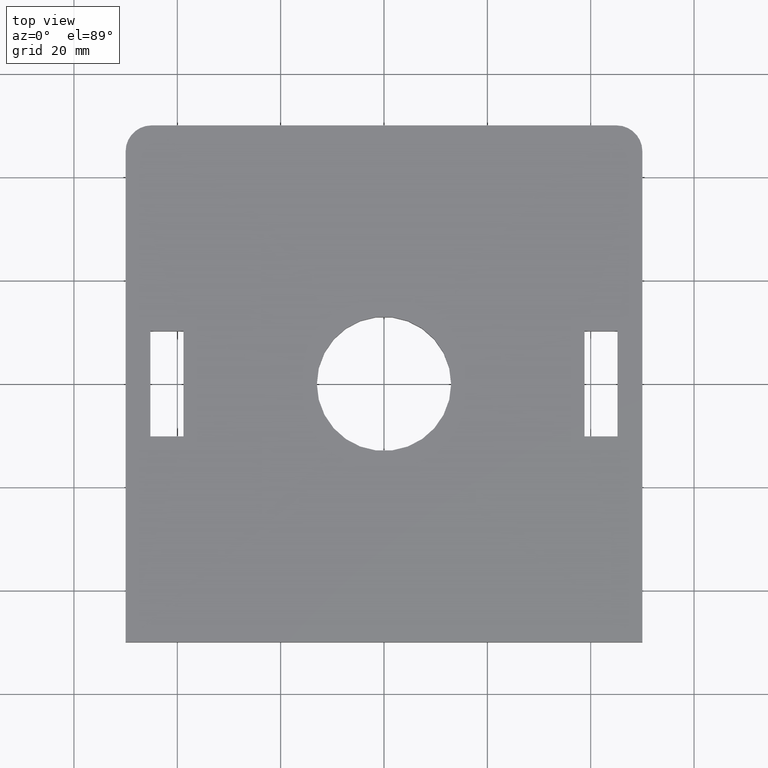
[diagram: clean part render]
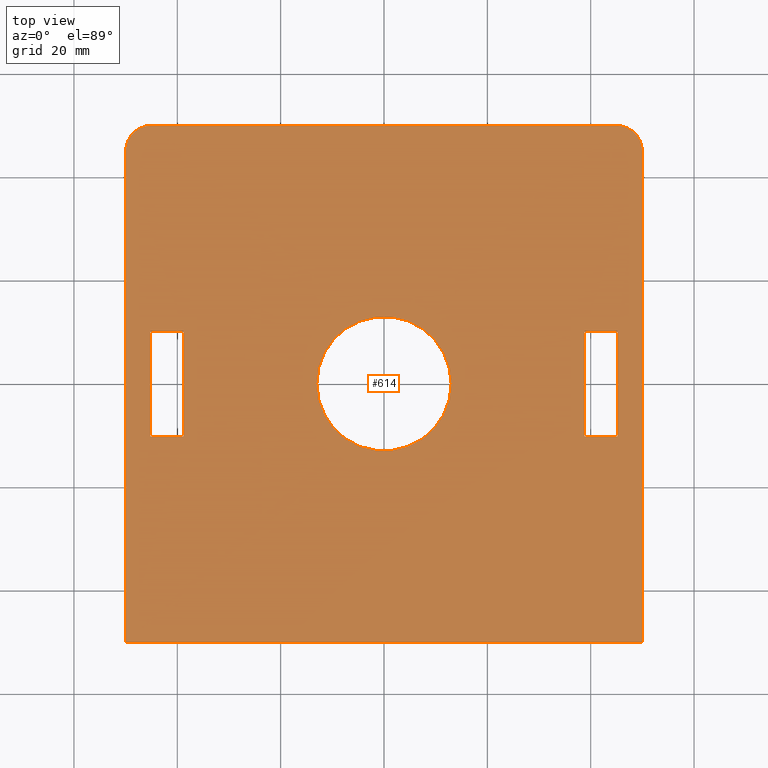
[diagram: same view with one face highlighted and labeled with its STEP entity id]
A machine part, top view. The second image highlights one B-rep face of the part: STEP entity #614.
In plain terms, the highlighted planar face has unit normal (0, 0, -1).
Its self-contained STEP definition (entity closure, byte-faithful):
#2 = EDGE_LOOP ( 'NONE', ( #333, #246, #160, #266 ) ) ;
#10 = EDGE_CURVE ( 'NONE', #30, #306, #114, .T. ) ;
#12 = EDGE_LOOP ( 'NONE', ( #96, #204, #353, #172, #584, #533 ) ) ;
#16 = EDGE_CURVE ( 'NONE', #626, #636, #90, .T. ) ;
#19 = DIRECTION ( 'NONE',  ( -1.805559322863035323E-34, -1.000000000000000000, 1.232595164407830946E-32 ) ) ;
#23 = VECTOR ( 'NONE', #253, 1000.000000000000000 ) ;
#30 = VERTEX_POINT ( 'NONE', #287 ) ;
#33 = VECTOR ( 'NONE', #319, 1000.000000000000000 ) ;
#56 = LINE ( 'NONE', #304, #33 ) ;
#60 = LINE ( 'NONE', #546, #387 ) ;
#65 = CARTESIAN_POINT ( 'NONE',  ( 38.80000000000041638, 10.20000000000065299, -5.551115123125782702E-13 ) ) ;
#67 = EDGE_CURVE ( 'NONE', #386, #566, #277, .T. ) ;
#69 = VECTOR ( 'NONE', #176, 1000.000000000000000 ) ;
#79 = CARTESIAN_POINT ( 'NONE',  ( -38.79999999999989058, 10.19999999999976481, -3.339342691255353657E-13 ) ) ;
#81 = FACE_BOUND ( 'NONE', #2, .T. ) ;
#90 = CIRCLE ( 'NONE', #323, 13.00000000000000178 ) ;
#93 = VERTEX_POINT ( 'NONE', #229 ) ;
#96 = ORIENTED_EDGE ( 'NONE', *, *, #10, .T. ) ;
#99 = EDGE_CURVE ( 'NONE', #306, #153, #335, .T. ) ;
#105 = VERTEX_POINT ( 'NONE', #128 ) ;
#107 = CARTESIAN_POINT ( 'NONE',  ( 0.000000000000000000, 0.000000000000000000, 0.000000000000000000 ) ) ;
#110 = DIRECTION ( 'NONE',  ( 1.000000000000000000, 1.805559322863033398E-34, 1.540743955509788682E-33 ) ) ;
#114 = LINE ( 'NONE', #416, #231 ) ;
#116 = VERTEX_POINT ( 'NONE', #79 ) ;
#124 = DIRECTION ( 'NONE',  ( 1.805559322863035323E-34, 1.000000000000000000, -1.232595164407830946E-32 ) ) ;
#128 = CARTESIAN_POINT ( 'NONE',  ( 38.80000000000041638, 10.20000000000065299, -5.551115123125782702E-13 ) ) ;
#137 = DIRECTION ( 'NONE',  ( 1.540743955509788682E-33, 2.781904613015565710E-67, -1.000000000000000000 ) ) ;
#141 = DIRECTION ( 'NONE',  ( -1.000000000000000000, -1.805559322863033398E-34, -1.540743955509788682E-33 ) ) ;
#151 = DIRECTION ( 'NONE',  ( 0.000000000000000000, 0.000000000000000000, 1.000000000000000000 ) ) ;
#153 = VERTEX_POINT ( 'NONE', #329 ) ;
#158 = CARTESIAN_POINT ( 'NONE',  ( 13.00000000000000178, 2.347227119721943696E-33, 2.002967142162725561E-32 ) ) ;
#160 = ORIENTED_EDGE ( 'NONE', *, *, #423, .T. ) ;
#165 = EDGE_CURVE ( 'NONE', #580, #442, #543, .T. ) ;
#171 = CARTESIAN_POINT ( 'NONE',  ( -38.80000000000005400, -10.19999999999987494, -2.220446049250313081E-13 ) ) ;
#172 = ORIENTED_EDGE ( 'NONE', *, *, #501, .T. ) ;
#175 = DIRECTION ( 'NONE',  ( 0.000000000000000000, 0.000000000000000000, 1.000000000000000000 ) ) ;
#176 = DIRECTION ( 'NONE',  ( -1.805559322863035323E-34, -1.000000000000000000, 1.232595164407830946E-32 ) ) ;
#182 = CIRCLE ( 'NONE', #254, 13.00000000000000178 ) ;
#186 = DIRECTION ( 'NONE',  ( -0.000000000000000000, -0.000000000000000000, 1.000000000000000000 ) ) ;
#188 = CARTESIAN_POINT ( 'NONE',  ( -49.99999999999965894, 45.00000000000070344, -8.881784197001252323E-13 ) ) ;
#189 = CARTESIAN_POINT ( 'NONE',  ( 45.00000000000109424, 44.99999999999992895, -1.110223024625156540E-13 ) ) ;
#191 = VECTOR ( 'NONE', #413, 1000.000000000000000 ) ;
#196 = DIRECTION ( 'NONE',  ( 1.000000000000000000, 1.805559322863033398E-34, 1.540743955509788682E-33 ) ) ;
#197 = VERTEX_POINT ( 'NONE', #257 ) ;
#199 = CARTESIAN_POINT ( 'NONE',  ( -45.19999999999957652, 10.19999999999965468, -5.551115123125782702E-13 ) ) ;
#204 = ORIENTED_EDGE ( 'NONE', *, *, #99, .T. ) ;
#208 = CARTESIAN_POINT ( 'NONE',  ( 38.80000000000066507, -10.20000000000031903, -5.551115123125782702E-13 ) ) ;
#211 = VERTEX_POINT ( 'NONE', #290 ) ;
#213 = EDGE_CURVE ( 'NONE', #442, #30, #60, .T. ) ;
#215 = CARTESIAN_POINT ( 'NONE',  ( -49.99999999999993605, -50.00000000000049027, -4.440892098500626162E-13 ) ) ;
#216 = ORIENTED_EDGE ( 'NONE', *, *, #623, .T. ) ;
#220 = DIRECTION ( 'NONE',  ( 1.805559322863035323E-34, 1.000000000000000000, -1.232595164407830946E-32 ) ) ;
#222 = VECTOR ( 'NONE', #110, 1000.000000000000000 ) ;
#223 = LINE ( 'NONE', #476, #69 ) ;
#228 = FACE_BOUND ( 'NONE', #414, .T. ) ;
#229 = CARTESIAN_POINT ( 'NONE',  ( 45.20000000000071338, 10.19999999999998685, -9.992007221626408864E-13 ) ) ;
#231 = VECTOR ( 'NONE', #220, 1000.000000000000000 ) ;
#233 = CARTESIAN_POINT ( 'NONE',  ( -45.19999999999968310, -10.20000000000031903, -9.992007221626408864E-13 ) ) ;
#238 = EDGE_CURVE ( 'NONE', #636, #626, #182, .T. ) ;
#240 = CARTESIAN_POINT ( 'NONE',  ( 50.00000000000018474, 45.00000000000070344, -5.551115123125782702E-13 ) ) ;
#246 = ORIENTED_EDGE ( 'NONE', *, *, #67, .T. ) ;
#249 = CARTESIAN_POINT ( 'NONE',  ( 45.20000000000071338, 10.19999999999998685, -9.992007221626408864E-13 ) ) ;
#253 = DIRECTION ( 'NONE',  ( -1.805559322863035323E-34, -1.000000000000000000, 1.232595164407830946E-32 ) ) ;
#254 = AXIS2_PLACEMENT_3D ( 'NONE', #107, #151, #643 ) ;
#257 = CARTESIAN_POINT ( 'NONE',  ( 45.20000000000054285, -10.19999999999987494, -1.000068083900629290E-12 ) ) ;
#264 = AXIS2_PLACEMENT_3D ( 'NONE', #468, #328, #276 ) ;
#266 = ORIENTED_EDGE ( 'NONE', *, *, #267, .T. ) ;
#267 = EDGE_CURVE ( 'NONE', #320, #116, #342, .T. ) ;
#276 = DIRECTION ( 'NONE',  ( -1.000000000000000000, -3.358424649491100554E-13, 0.000000000000000000 ) ) ;
#277 = LINE ( 'NONE', #233, #408 ) ;
#287 = CARTESIAN_POINT ( 'NONE',  ( 50.00000000000065370, -50.00000000000027001, -9.992007221626408864E-13 ) ) ;
#290 = CARTESIAN_POINT ( 'NONE',  ( -44.99999999999987210, 50.00000000000059686, -3.330669073875469621E-13 ) ) ;
#304 = CARTESIAN_POINT ( 'NONE',  ( -49.99999999999970868, 49.99999999999993605, -1.110223024625156540E-13 ) ) ;
#306 = VERTEX_POINT ( 'NONE', #240 ) ;
#308 = EDGE_CURVE ( 'NONE', #105, #93, #647, .T. ) ;
#312 = ORIENTED_EDGE ( 'NONE', *, *, #308, .T. ) ;
#319 = DIRECTION ( 'NONE',  ( -1.000000000000000000, -1.805559322863033398E-34, -1.540743955509788682E-33 ) ) ;
#320 = VERTEX_POINT ( 'NONE', #199 ) ;
#323 = AXIS2_PLACEMENT_3D ( 'NONE', #418, #175, #371 ) ;
#326 = EDGE_CURVE ( 'NONE', #153, #211, #56, .T. ) ;
#327 = ORIENTED_EDGE ( 'NONE', *, *, #16, .F. ) ;
#328 = DIRECTION ( 'NONE',  ( -0.000000000000000000, -0.000000000000000000, 1.000000000000000000 ) ) ;
#329 = CARTESIAN_POINT ( 'NONE',  ( 45.00000000000093081, 49.99999999999970868, -3.330669073875469621E-13 ) ) ;
#331 = DIRECTION ( 'NONE',  ( -1.000000000000000000, -1.805559322863033398E-34, -1.540743955509788682E-33 ) ) ;
#333 = ORIENTED_EDGE ( 'NONE', *, *, #592, .T. ) ;
#335 = CIRCLE ( 'NONE', #419, 4.999999999999997335 ) ;
#342 = LINE ( 'NONE', #503, #222 ) ;
#344 = VERTEX_POINT ( 'NONE', #208 ) ;
#349 = CARTESIAN_POINT ( 'NONE',  ( -49.99999999999993605, -50.00000000000049027, -4.440892098500626162E-13 ) ) ;
#353 = ORIENTED_EDGE ( 'NONE', *, *, #326, .T. ) ;
#357 = EDGE_CURVE ( 'NONE', #93, #197, #466, .T. ) ;
#359 = VECTOR ( 'NONE', #196, 1000.000000000000000 ) ;
#362 = CARTESIAN_POINT ( 'NONE',  ( -45.19999999999957652, 10.19999999999965468, -5.551115123125782702E-13 ) ) ;
#367 = LINE ( 'NONE', #65, #191 ) ;
#371 = DIRECTION ( 'NONE',  ( 1.000000000000000000, 1.805559322863033398E-34, 1.540743955509788682E-33 ) ) ;
#385 = DIRECTION ( 'NONE',  ( -1.000000000000000000, -1.387778780781446464E-15, 0.000000000000000000 ) ) ;
#386 = VERTEX_POINT ( 'NONE', #171 ) ;
#387 = VECTOR ( 'NONE', #394, 1000.000000000000000 ) ;
#394 = DIRECTION ( 'NONE',  ( 1.000000000000000000, 1.805559322863033398E-34, 1.540743955509788682E-33 ) ) ;
#405 = LINE ( 'NONE', #362, #558 ) ;
#408 = VECTOR ( 'NONE', #437, 1000.000000000000000 ) ;
#412 = EDGE_CURVE ( 'NONE', #344, #105, #367, .T. ) ;
#413 = DIRECTION ( 'NONE',  ( 1.805559322863035323E-34, 1.000000000000000000, -1.232595164407830946E-32 ) ) ;
#414 = EDGE_LOOP ( 'NONE', ( #445, #327 ) ) ;
#416 = CARTESIAN_POINT ( 'NONE',  ( 50.00000000000065370, -50.00000000000027001, -9.992007221626408864E-13 ) ) ;
#418 = CARTESIAN_POINT ( 'NONE',  ( 0.000000000000000000, 0.000000000000000000, 0.000000000000000000 ) ) ;
#419 = AXIS2_PLACEMENT_3D ( 'NONE', #189, #186, #385 ) ;
#423 = EDGE_CURVE ( 'NONE', #566, #320, #405, .T. ) ;
#437 = DIRECTION ( 'NONE',  ( -1.000000000000000000, -1.805559322863033398E-34, -1.540743955509788682E-33 ) ) ;
#442 = VERTEX_POINT ( 'NONE', #215 ) ;
#445 = ORIENTED_EDGE ( 'NONE', *, *, #238, .F. ) ;
#466 = LINE ( 'NONE', #567, #568 ) ;
#468 = CARTESIAN_POINT ( 'NONE',  ( -44.99999999999981526, 45.00000000000014921, -3.330669073875469621E-13 ) ) ;
#476 = CARTESIAN_POINT ( 'NONE',  ( -38.80000000000005400, -10.19999999999987494, -2.220446049250313081E-13 ) ) ;
#482 = ORIENTED_EDGE ( 'NONE', *, *, #412, .T. ) ;
#501 = EDGE_CURVE ( 'NONE', #211, #580, #591, .T. ) ;
#503 = CARTESIAN_POINT ( 'NONE',  ( -38.79999999999989058, 10.19999999999976481, -3.339342691255353657E-13 ) ) ;
#508 = VECTOR ( 'NONE', #141, 1000.000000000000000 ) ;
#509 = ORIENTED_EDGE ( 'NONE', *, *, #357, .T. ) ;
#523 = FACE_OUTER_BOUND ( 'NONE', #12, .T. ) ;
#533 = ORIENTED_EDGE ( 'NONE', *, *, #213, .T. ) ;
#534 = LINE ( 'NONE', #587, #508 ) ;
#543 = LINE ( 'NONE', #349, #23 ) ;
#546 = CARTESIAN_POINT ( 'NONE',  ( -49.99999999999993605, -50.00000000000049027, -4.440892098500626162E-13 ) ) ;
#557 = EDGE_LOOP ( 'NONE', ( #509, #216, #482, #312 ) ) ;
#558 = VECTOR ( 'NONE', #124, 1000.000000000000000 ) ;
#566 = VERTEX_POINT ( 'NONE', #641 ) ;
#567 = CARTESIAN_POINT ( 'NONE',  ( 45.20000000000054285, -10.19999999999987494, -1.000068083900629290E-12 ) ) ;
#568 = VECTOR ( 'NONE', #19, 1000.000000000000000 ) ;
#574 = CARTESIAN_POINT ( 'NONE',  ( -13.00000000000000178, 1.592040838891559293E-15, 0.000000000000000000 ) ) ;
#580 = VERTEX_POINT ( 'NONE', #188 ) ;
#581 = AXIS2_PLACEMENT_3D ( 'NONE', #582, #137, #331 ) ;
#582 = CARTESIAN_POINT ( 'NONE',  ( 0.000000000000000000, 0.000000000000000000, 0.000000000000000000 ) ) ;
#584 = ORIENTED_EDGE ( 'NONE', *, *, #165, .T. ) ;
#585 = FACE_BOUND ( 'NONE', #557, .T. ) ;
#587 = CARTESIAN_POINT ( 'NONE',  ( 38.80000000000066507, -10.20000000000031903, -5.551115123125782702E-13 ) ) ;
#591 = CIRCLE ( 'NONE', #264, 4.999999999999997335 ) ;
#592 = EDGE_CURVE ( 'NONE', #116, #386, #223, .T. ) ;
#614 = ADVANCED_FACE ( 'NONE', ( #585, #228, #523, #81 ), #633, .F. ) ;
#623 = EDGE_CURVE ( 'NONE', #197, #344, #534, .T. ) ;
#626 = VERTEX_POINT ( 'NONE', #574 ) ;
#633 = PLANE ( 'NONE',  #581 ) ;
#636 = VERTEX_POINT ( 'NONE', #158 ) ;
#641 = CARTESIAN_POINT ( 'NONE',  ( -45.19999999999968310, -10.20000000000031903, -9.992007221626408864E-13 ) ) ;
#643 = DIRECTION ( 'NONE',  ( 1.000000000000000000, 1.805559322863033398E-34, 1.540743955509788682E-33 ) ) ;
#647 = LINE ( 'NONE', #249, #359 ) ;